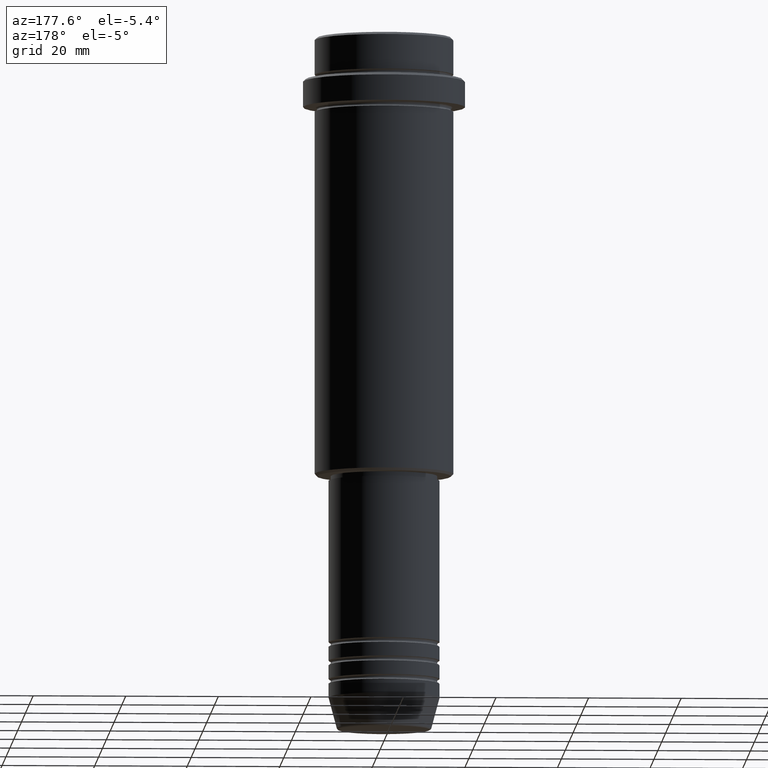
[diagram: clean part render]
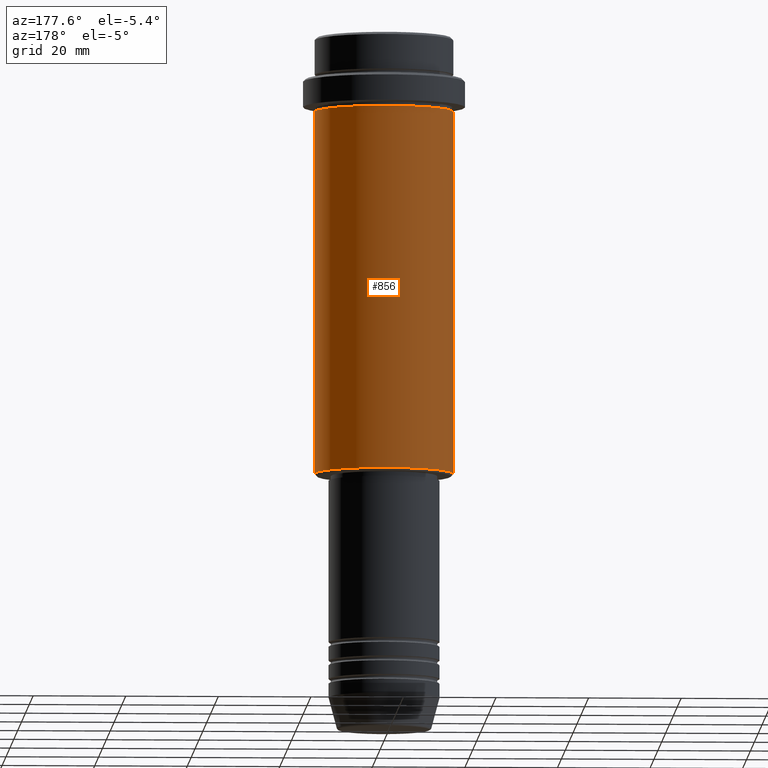
[diagram: same view with one face highlighted and labeled with its STEP entity id]
A machine part, auxiliary view. The second image highlights one B-rep face of the part: STEP entity #856.
In plain terms, the highlighted cylindrical surface (partial cylindrical patch) has radius 15 mm, axis along (-0, -0, 1).
Its self-contained STEP definition (entity closure, byte-faithful):
#24 = DIRECTION ( 'NONE',  ( -1.000000000000000000, 0.000000000000000000, 0.000000000000000000 ) ) ;
#60 = CARTESIAN_POINT ( 'NONE',  ( -15.00000000000000000, 1.836970198721029589E-15, 0.000000000000000000 ) ) ;
#144 = CIRCLE ( 'NONE', #1065, 15.00000000000000000 ) ;
#164 = CARTESIAN_POINT ( 'NONE',  ( 0.000000000000000000, 0.000000000000000000, -16.00000000000000000 ) ) ;
#170 = CARTESIAN_POINT ( 'NONE',  ( 15.00000000000000178, 0.000000000000000000, -16.00000000000000000 ) ) ;
#174 = LINE ( 'NONE', #60, #1297 ) ;
#248 = DIRECTION ( 'NONE',  ( -0.000000000000000000, -0.000000000000000000, 1.000000000000000000 ) ) ;
#287 = DIRECTION ( 'NONE',  ( 1.000000000000000000, 0.000000000000000000, 0.000000000000000000 ) ) ;
#374 = ORIENTED_EDGE ( 'NONE', *, *, #1228, .F. ) ;
#381 = DIRECTION ( 'NONE',  ( -0.000000000000000000, -0.000000000000000000, 1.000000000000000000 ) ) ;
#383 = EDGE_CURVE ( 'NONE', #872, #1199, #1373, .T. ) ;
#395 = EDGE_CURVE ( 'NONE', #1306, #1199, #174, .T. ) ;
#482 = CYLINDRICAL_SURFACE ( 'NONE', #912, 15.00000000000000000 ) ;
#501 = ORIENTED_EDGE ( 'NONE', *, *, #1115, .T. ) ;
#509 = FACE_OUTER_BOUND ( 'NONE', #1363, .T. ) ;
#538 = AXIS2_PLACEMENT_3D ( 'NONE', #164, #726, #287 ) ;
#609 = DIRECTION ( 'NONE',  ( -0.000000000000000000, -0.000000000000000000, 1.000000000000000000 ) ) ;
#672 = CARTESIAN_POINT ( 'NONE',  ( 0.000000000000000000, 0.000000000000000000, -94.50000000000000000 ) ) ;
#695 = DIRECTION ( 'NONE',  ( 1.000000000000000000, 0.000000000000000000, 0.000000000000000000 ) ) ;
#726 = DIRECTION ( 'NONE',  ( -0.000000000000000000, -0.000000000000000000, 1.000000000000000000 ) ) ;
#749 = ORIENTED_EDGE ( 'NONE', *, *, #383, .F. ) ;
#818 = DIRECTION ( 'NONE',  ( -0.000000000000000000, -0.000000000000000000, 1.000000000000000000 ) ) ;
#825 = ORIENTED_EDGE ( 'NONE', *, *, #395, .T. ) ;
#831 = VERTEX_POINT ( 'NONE', #1162 ) ;
#856 = ADVANCED_FACE ( 'NONE', ( #509 ), #482, .T. ) ;
#872 = VERTEX_POINT ( 'NONE', #170 ) ;
#905 = CARTESIAN_POINT ( 'NONE',  ( -15.00000000000000355, 1.836970198721029983E-15, -16.00000000000000000 ) ) ;
#912 = AXIS2_PLACEMENT_3D ( 'NONE', #1233, #381, #695 ) ;
#928 = LINE ( 'NONE', #1365, #1045 ) ;
#1044 = CARTESIAN_POINT ( 'NONE',  ( -15.00000000000000000, 1.836970198721029589E-15, -94.50000000000000000 ) ) ;
#1045 = VECTOR ( 'NONE', #818, 1000.000000000000000 ) ;
#1065 = AXIS2_PLACEMENT_3D ( 'NONE', #672, #248, #24 ) ;
#1115 = EDGE_CURVE ( 'NONE', #831, #1306, #144, .T. ) ;
#1162 = CARTESIAN_POINT ( 'NONE',  ( 15.00000000000000000, 0.000000000000000000, -94.50000000000000000 ) ) ;
#1199 = VERTEX_POINT ( 'NONE', #905 ) ;
#1228 = EDGE_CURVE ( 'NONE', #831, #872, #928, .T. ) ;
#1233 = CARTESIAN_POINT ( 'NONE',  ( 0.000000000000000000, 0.000000000000000000, 0.000000000000000000 ) ) ;
#1297 = VECTOR ( 'NONE', #609, 1000.000000000000000 ) ;
#1306 = VERTEX_POINT ( 'NONE', #1044 ) ;
#1363 = EDGE_LOOP ( 'NONE', ( #501, #825, #749, #374 ) ) ;
#1365 = CARTESIAN_POINT ( 'NONE',  ( 15.00000000000000000, 0.000000000000000000, 0.000000000000000000 ) ) ;
#1373 = CIRCLE ( 'NONE', #538, 15.00000000000000178 ) ;